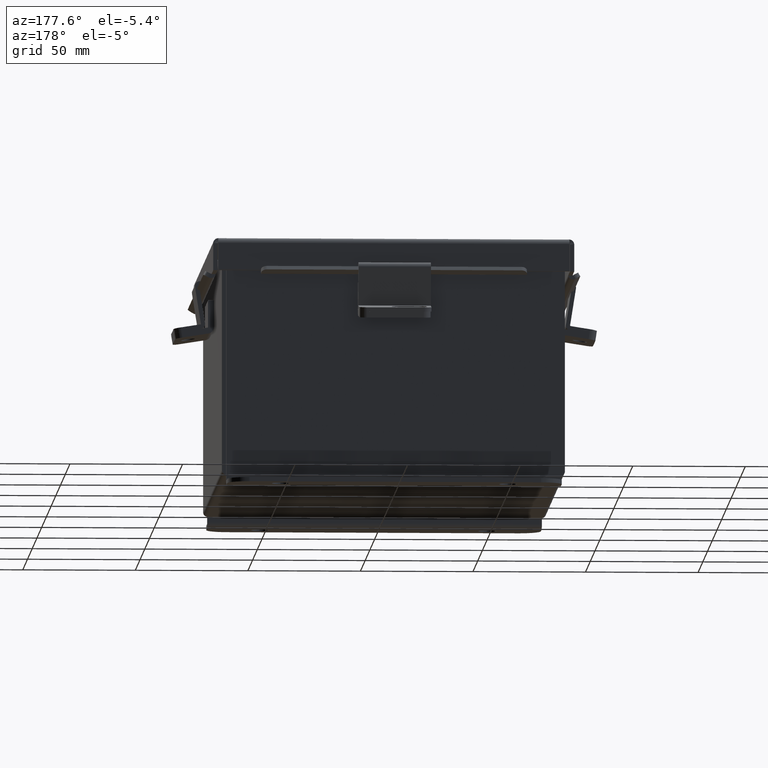
[diagram: clean part render]
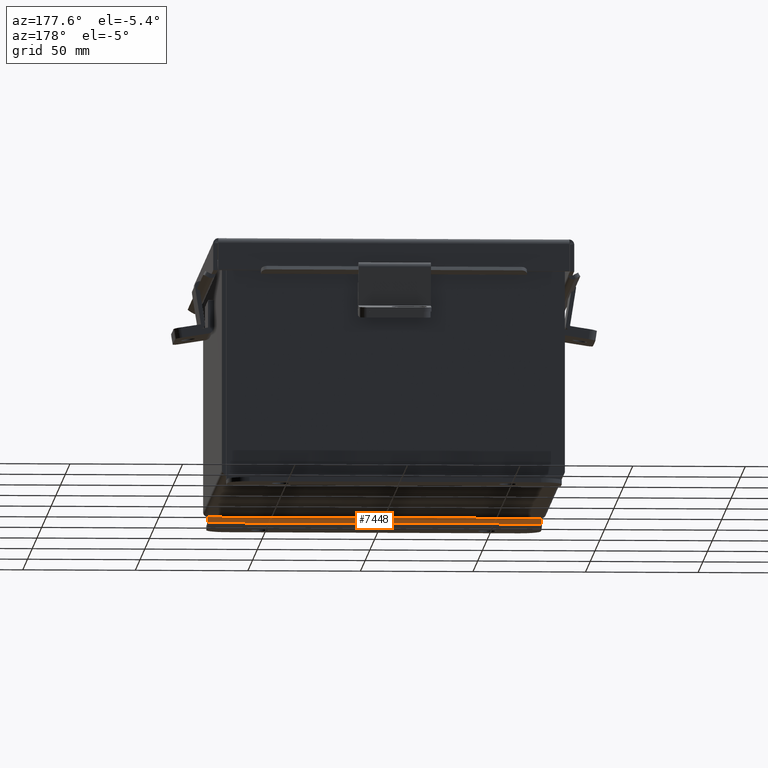
[diagram: same view with one face highlighted and labeled with its STEP entity id]
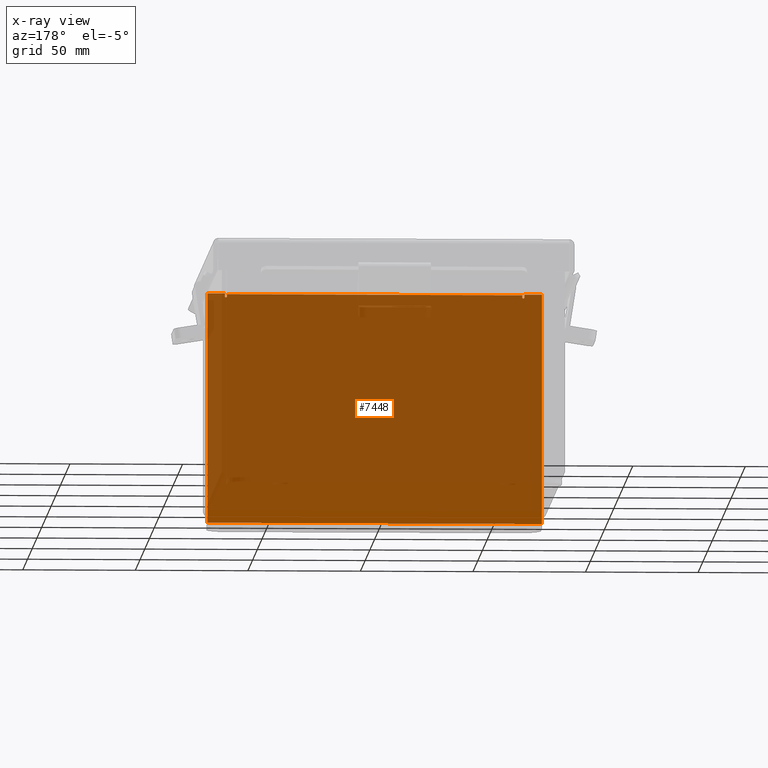
[diagram: x-ray of the same camera — body ghosted, the highlighted face saturated]
A machine part, auxiliary view. The second image highlights one B-rep face of the part: STEP entity #7448.
The next image is the same camera in x-ray: the body ghosted, the highlighted face saturated — about 95% of this face is hidden behind the body in this view.
In plain terms, the highlighted planar face has unit normal (-0, 1, -0).
Its self-contained STEP definition (entity closure, byte-faithful):
#38 = DIRECTION ( 'NONE',  ( 0.0000000000000000000, 0.0000000000000000000, -1.000000000000000000 ) ) ;
#44 = EDGE_CURVE ( 'NONE', #724, #2915, #5083, .T. ) ;
#159 = LINE ( 'NONE', #2187, #9559 ) ;
#203 = DIRECTION ( 'NONE',  ( 1.000000000000000000, 4.910036603141682400E-031, 0.0000000000000000000 ) ) ;
#284 = CARTESIAN_POINT ( 'NONE',  ( -2.600975000000000500, -0.07469999999999851800, 1.874950000000000800 ) ) ;
#665 = EDGE_CURVE ( 'NONE', #8582, #724, #9045, .T. ) ;
#724 = VERTEX_POINT ( 'NONE', #3224 ) ;
#768 = EDGE_CURVE ( 'NONE', #4408, #2572, #6098, .T. ) ;
#860 = EDGE_CURVE ( 'NONE', #6602, #7677, #3465, .T. ) ;
#1156 = EDGE_CURVE ( 'NONE', #2572, #7838, #5278, .T. ) ;
#1166 = ORIENTED_EDGE ( 'NONE', *, *, #44, .F. ) ;
#1275 = ORIENTED_EDGE ( 'NONE', *, *, #1156, .F. ) ;
#1338 = AXIS2_PLACEMENT_3D ( 'NONE', #8924, #4447, #38 ) ;
#1414 = VECTOR ( 'NONE', #3070, 39.37007874015748100 ) ;
#1443 = ORIENTED_EDGE ( 'NONE', *, *, #8874, .F. ) ;
#1466 = CARTESIAN_POINT ( 'NONE',  ( -2.619649999999996000, -0.07469999999999961400, 1.925300000000000900 ) ) ;
#1625 = CARTESIAN_POINT ( 'NONE',  ( 2.925299999999999600, -0.07469999999999579800, -2.099299999999996800 ) ) ;
#1648 = VERTEX_POINT ( 'NONE', #4293 ) ;
#1732 = EDGE_CURVE ( 'NONE', #1648, #7677, #2859, .T. ) ;
#1785 = CARTESIAN_POINT ( 'NONE',  ( 2.582300000000003600, -0.07469999999999414600, 1.912300000000000300 ) ) ;
#1899 = ORIENTED_EDGE ( 'NONE', *, *, #4938, .F. ) ;
#2135 = DIRECTION ( 'NONE',  ( -4.910036603141682400E-031, -1.000000000000000000, 0.0000000000000000000 ) ) ;
#2138 = VECTOR ( 'NONE', #5844, 39.37007874015748100 ) ;
#2149 = DIRECTION ( 'NONE',  ( 0.0000000000000000000, 1.186875369640613200E-014, -1.000000000000000000 ) ) ;
#2187 = CARTESIAN_POINT ( 'NONE',  ( -2.619649999999996000, -0.07469999999999907300, 1.925300000000000900 ) ) ;
#2252 = ORIENTED_EDGE ( 'NONE', *, *, #7555, .F. ) ;
#2314 = ORIENTED_EDGE ( 'NONE', *, *, #665, .F. ) ;
#2363 = LINE ( 'NONE', #5860, #2138 ) ;
#2572 = VERTEX_POINT ( 'NONE', #7056 ) ;
#2610 = EDGE_CURVE ( 'NONE', #1648, #6524, #6795, .T. ) ;
#2859 = LINE ( 'NONE', #3340, #4820 ) ;
#2915 = VERTEX_POINT ( 'NONE', #9131 ) ;
#2973 = PLANE ( 'NONE',  #1338 ) ;
#3029 = ORIENTED_EDGE ( 'NONE', *, *, #860, .F. ) ;
#3070 = DIRECTION ( 'NONE',  ( 1.000000000000000000, 4.910036603141682400E-031, -0.0000000000000000000 ) ) ;
#3112 = VECTOR ( 'NONE', #3638, 39.37007874015748100 ) ;
#3224 = CARTESIAN_POINT ( 'NONE',  ( -2.582300000000000500, -0.07469999999999961400, 1.874950000000000800 ) ) ;
#3242 = VERTEX_POINT ( 'NONE', #1466 ) ;
#3340 = CARTESIAN_POINT ( 'NONE',  ( -2.925300000000000500, -0.07470000000000015500, -2.099299999999999100 ) ) ;
#3403 = VERTEX_POINT ( 'NONE', #8592 ) ;
#3417 = CARTESIAN_POINT ( 'NONE',  ( 2.619649999999999600, -0.07469999999999579800, 1.874950000000000100 ) ) ;
#3432 = AXIS2_PLACEMENT_3D ( 'NONE', #7503, #2135, #6712 ) ;
#3465 = LINE ( 'NONE', #6522, #9154 ) ;
#3638 = DIRECTION ( 'NONE',  ( 0.0000000000000000000, 0.0000000000000000000, 1.000000000000000000 ) ) ;
#3927 = DIRECTION ( 'NONE',  ( 0.0000000000000000000, 0.0000000000000000000, -1.000000000000000000 ) ) ;
#3937 = DIRECTION ( 'NONE',  ( 0.0000000000000000000, 0.0000000000000000000, -1.000000000000000000 ) ) ;
#3972 = ORIENTED_EDGE ( 'NONE', *, *, #8944, .F. ) ;
#4176 = VECTOR ( 'NONE', #7692, 39.37007874015748100 ) ;
#4179 = EDGE_LOOP ( 'NONE', ( #2314, #1899, #3972, #7083, #6640, #3029, #1443, #6628, #1275, #7907, #2252, #1166 ) ) ;
#4293 = CARTESIAN_POINT ( 'NONE',  ( -2.925300000000000000, -0.07470000000000015500, -2.099299999999999100 ) ) ;
#4408 = VERTEX_POINT ( 'NONE', #5540 ) ;
#4447 = DIRECTION ( 'NONE',  ( -4.910036603141682400E-031, -1.000000000000000000, -0.0000000000000000000 ) ) ;
#4546 = CARTESIAN_POINT ( 'NONE',  ( -2.582299999999996000, -0.07469999999999851800, 1.912300000000000800 ) ) ;
#4553 = CARTESIAN_POINT ( 'NONE',  ( -2.582300000000000500, -0.07469999999999851800, 1.874950000000000800 ) ) ;
#4820 = VECTOR ( 'NONE', #7708, 39.37007874015748100 ) ;
#4909 = CARTESIAN_POINT ( 'NONE',  ( -2.925299999999996500, -0.07470000000000015500, 1.925300000000000900 ) ) ;
#4938 = EDGE_CURVE ( 'NONE', #3242, #8582, #159, .T. ) ;
#5056 = VECTOR ( 'NONE', #7387, 39.37007874015748100 ) ;
#5083 = LINE ( 'NONE', #4553, #3112 ) ;
#5278 = CIRCLE ( 'NONE', #3432, 0.01867500000000003900 ) ;
#5485 = EDGE_CURVE ( 'NONE', #7838, #3403, #2363, .T. ) ;
#5540 = CARTESIAN_POINT ( 'NONE',  ( 2.582300000000003600, -0.07469999999999579800, 1.912300000000000300 ) ) ;
#5683 = CARTESIAN_POINT ( 'NONE',  ( 2.925300000000004000, -0.07469999999999579800, 1.925300000000001300 ) ) ;
#5844 = DIRECTION ( 'NONE',  ( 1.085143195099989400E-014, -1.186875369640612300E-014, 1.000000000000000000 ) ) ;
#5860 = CARTESIAN_POINT ( 'NONE',  ( 2.619649999999999600, -0.07469999999999414600, 1.874950000000000100 ) ) ;
#6098 = LINE ( 'NONE', #1785, #7868 ) ;
#6116 = LINE ( 'NONE', #6948, #4176 ) ;
#6363 = LINE ( 'NONE', #8342, #8107 ) ;
#6522 = CARTESIAN_POINT ( 'NONE',  ( 2.925300000000004000, -0.07469999999999579800, 1.925300000000001300 ) ) ;
#6524 = VERTEX_POINT ( 'NONE', #4909 ) ;
#6602 = VERTEX_POINT ( 'NONE', #5683 ) ;
#6628 = ORIENTED_EDGE ( 'NONE', *, *, #5485, .F. ) ;
#6640 = ORIENTED_EDGE ( 'NONE', *, *, #1732, .T. ) ;
#6712 = DIRECTION ( 'NONE',  ( 0.0000000000000000000, 0.0000000000000000000, -1.000000000000000000 ) ) ;
#6763 = AXIS2_PLACEMENT_3D ( 'NONE', #284, #7509, #3937 ) ;
#6795 = LINE ( 'NONE', #9226, #5056 ) ;
#6948 = CARTESIAN_POINT ( 'NONE',  ( -2.925299999999996500, -0.07470000000000015500, 1.925300000000000900 ) ) ;
#7056 = CARTESIAN_POINT ( 'NONE',  ( 2.582299999999999600, -0.07469999999999579800, 1.874950000000000100 ) ) ;
#7083 = ORIENTED_EDGE ( 'NONE', *, *, #2610, .F. ) ;
#7307 = CARTESIAN_POINT ( 'NONE',  ( -2.619650000000000500, -0.07469999999999961400, 1.874950000000000800 ) ) ;
#7387 = DIRECTION ( 'NONE',  ( 0.0000000000000000000, 0.0000000000000000000, 1.000000000000000000 ) ) ;
#7448 = ADVANCED_FACE ( 'NONE', ( #7790 ), #2973, .T. ) ;
#7503 = CARTESIAN_POINT ( 'NONE',  ( 2.600974999999999600, -0.07469999999999414600, 1.874950000000000100 ) ) ;
#7509 = DIRECTION ( 'NONE',  ( -4.910036603141682400E-031, -1.000000000000000000, 0.0000000000000000000 ) ) ;
#7555 = EDGE_CURVE ( 'NONE', #2915, #4408, #9086, .T. ) ;
#7583 = DIRECTION ( 'NONE',  ( 0.0000000000000000000, 0.0000000000000000000, -1.000000000000000000 ) ) ;
#7677 = VERTEX_POINT ( 'NONE', #1625 ) ;
#7692 = DIRECTION ( 'NONE',  ( 1.000000000000000000, 4.910036603141682400E-031, 0.0000000000000000000 ) ) ;
#7708 = DIRECTION ( 'NONE',  ( 1.000000000000000000, 4.910036603141682400E-031, -0.0000000000000000000 ) ) ;
#7790 = FACE_OUTER_BOUND ( 'NONE', #4179, .T. ) ;
#7838 = VERTEX_POINT ( 'NONE', #3417 ) ;
#7868 = VECTOR ( 'NONE', #7583, 39.37007874015748100 ) ;
#7907 = ORIENTED_EDGE ( 'NONE', *, *, #768, .F. ) ;
#8107 = VECTOR ( 'NONE', #203, 39.37007874015748100 ) ;
#8342 = CARTESIAN_POINT ( 'NONE',  ( -2.925299999999996500, -0.07470000000000015500, 1.925300000000000900 ) ) ;
#8582 = VERTEX_POINT ( 'NONE', #7307 ) ;
#8592 = CARTESIAN_POINT ( 'NONE',  ( 2.619650000000004000, -0.07469999999999579800, 1.925300000000001300 ) ) ;
#8874 = EDGE_CURVE ( 'NONE', #3403, #6602, #6363, .T. ) ;
#8924 = CARTESIAN_POINT ( 'NONE',  ( 2.035385365534024800E-024, -0.07470000000000015500, 0.0000000000000000000 ) ) ;
#8944 = EDGE_CURVE ( 'NONE', #6524, #3242, #6116, .T. ) ;
#9045 = CIRCLE ( 'NONE', #6763, 0.01867500000000003900 ) ;
#9086 = LINE ( 'NONE', #4546, #1414 ) ;
#9131 = CARTESIAN_POINT ( 'NONE',  ( -2.582299999999996000, -0.07469999999999961400, 1.912300000000000800 ) ) ;
#9154 = VECTOR ( 'NONE', #3927, 39.37007874015748100 ) ;
#9226 = CARTESIAN_POINT ( 'NONE',  ( -2.925299999999996500, -0.07470000000000015500, 1.925300000000000900 ) ) ;
#9559 = VECTOR ( 'NONE', #2149, 39.37007874015748100 ) ;